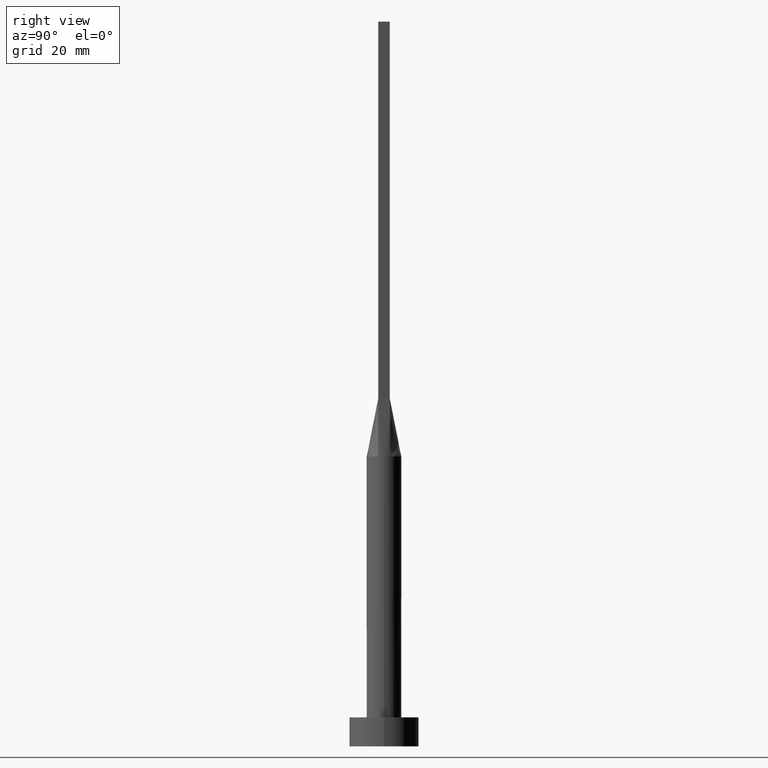
[diagram: clean part render]
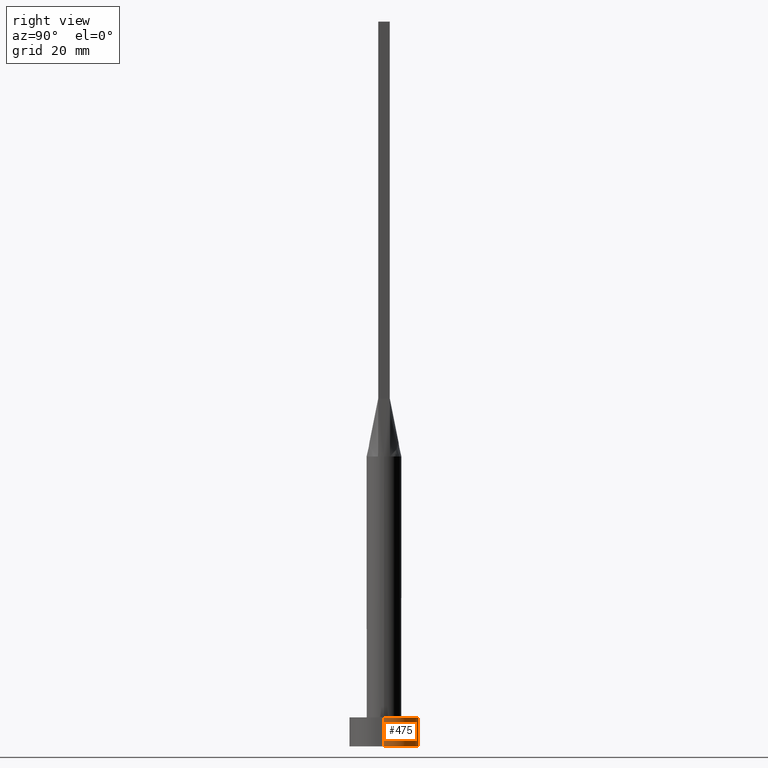
[diagram: same view with one face highlighted and labeled with its STEP entity id]
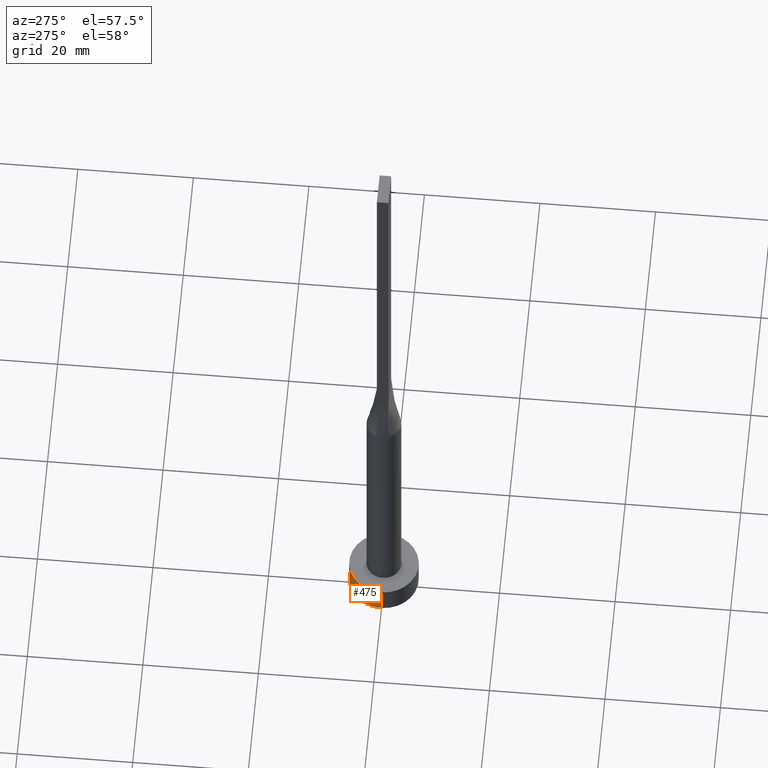
[diagram: same view with one face highlighted and labeled with its STEP entity id]
A machine part, right view. The second image highlights one B-rep face of the part: STEP entity #475.
A second angle (auxiliary view) of the same face is appended — the face is thin or edge-on in the first view.
In plain terms, the highlighted cylindrical surface (edge-blend (fillet) strip) has radius 6 mm, axis along (-0, -0, -1).
Its self-contained STEP definition (entity closure, byte-faithful):
#1 = DIRECTION ( 'NONE',  ( 1.000000000000000000, 0.000000000000000000, 0.000000000000000000 ) ) ;
#7 = CARTESIAN_POINT ( 'NONE',  ( 0.000000000000000000, 0.000000000000000000, 0.000000000000000000 ) ) ;
#14 = AXIS2_PLACEMENT_3D ( 'NONE', #131, #129, #497 ) ;
#23 = VERTEX_POINT ( 'NONE', #453 ) ;
#28 = EDGE_CURVE ( 'NONE', #197, #564, #571, .T. ) ;
#35 = LINE ( 'NONE', #201, #376 ) ;
#63 = CARTESIAN_POINT ( 'NONE',  ( 6.000000000000000888, 7.347880794884120722E-16, 5.000000000000000000 ) ) ;
#66 = DIRECTION ( 'NONE',  ( -0.000000000000000000, -0.000000000000000000, -1.000000000000000000 ) ) ;
#92 = FACE_OUTER_BOUND ( 'NONE', #392, .T. ) ;
#93 = DIRECTION ( 'NONE',  ( 1.000000000000000000, 0.000000000000000000, 0.000000000000000000 ) ) ;
#119 = VECTOR ( 'NONE', #382, 1000.000000000000000 ) ;
#129 = DIRECTION ( 'NONE',  ( -0.000000000000000000, -0.000000000000000000, -1.000000000000000000 ) ) ;
#131 = CARTESIAN_POINT ( 'NONE',  ( 0.000000000000000000, 0.000000000000000000, 5.000000000000000000 ) ) ;
#134 = EDGE_CURVE ( 'NONE', #167, #23, #561, .T. ) ;
#151 = ORIENTED_EDGE ( 'NONE', *, *, #250, .T. ) ;
#167 = VERTEX_POINT ( 'NONE', #63 ) ;
#197 = VERTEX_POINT ( 'NONE', #232 ) ;
#201 = CARTESIAN_POINT ( 'NONE',  ( 6.000000000000000888, 7.347880794884120722E-16, 5.000000000000000000 ) ) ;
#211 = LINE ( 'NONE', #259, #119 ) ;
#232 = CARTESIAN_POINT ( 'NONE',  ( 6.000000000000000888, 7.347880794884120722E-16, 0.000000000000000000 ) ) ;
#250 = EDGE_CURVE ( 'NONE', #167, #197, #35, .T. ) ;
#257 = EDGE_CURVE ( 'NONE', #23, #564, #211, .T. ) ;
#259 = CARTESIAN_POINT ( 'NONE',  ( -6.000000000000000888, 0.000000000000000000, 5.000000000000000000 ) ) ;
#293 = ORIENTED_EDGE ( 'NONE', *, *, #28, .T. ) ;
#300 = AXIS2_PLACEMENT_3D ( 'NONE', #502, #505, #93 ) ;
#359 = CARTESIAN_POINT ( 'NONE',  ( -6.000000000000000888, 0.000000000000000000, 0.000000000000000000 ) ) ;
#366 = ORIENTED_EDGE ( 'NONE', *, *, #134, .F. ) ;
#376 = VECTOR ( 'NONE', #66, 1000.000000000000000 ) ;
#382 = DIRECTION ( 'NONE',  ( -0.000000000000000000, -0.000000000000000000, -1.000000000000000000 ) ) ;
#392 = EDGE_LOOP ( 'NONE', ( #366, #151, #293, #522 ) ) ;
#453 = CARTESIAN_POINT ( 'NONE',  ( -6.000000000000000888, 0.000000000000000000, 5.000000000000000000 ) ) ;
#475 = ADVANCED_FACE ( 'NONE', ( #92 ), #535, .T. ) ;
#491 = DIRECTION ( 'NONE',  ( 0.000000000000000000, 0.000000000000000000, 1.000000000000000000 ) ) ;
#497 = DIRECTION ( 'NONE',  ( -1.000000000000000000, 0.000000000000000000, 0.000000000000000000 ) ) ;
#502 = CARTESIAN_POINT ( 'NONE',  ( 0.000000000000000000, 0.000000000000000000, 5.000000000000000000 ) ) ;
#505 = DIRECTION ( 'NONE',  ( 0.000000000000000000, 0.000000000000000000, 1.000000000000000000 ) ) ;
#522 = ORIENTED_EDGE ( 'NONE', *, *, #257, .F. ) ;
#535 = CYLINDRICAL_SURFACE ( 'NONE', #14, 6.000000000000000888 ) ;
#550 = AXIS2_PLACEMENT_3D ( 'NONE', #7, #491, #1 ) ;
#561 = CIRCLE ( 'NONE', #300, 6.000000000000000888 ) ;
#564 = VERTEX_POINT ( 'NONE', #359 ) ;
#571 = CIRCLE ( 'NONE', #550, 6.000000000000000888 ) ;